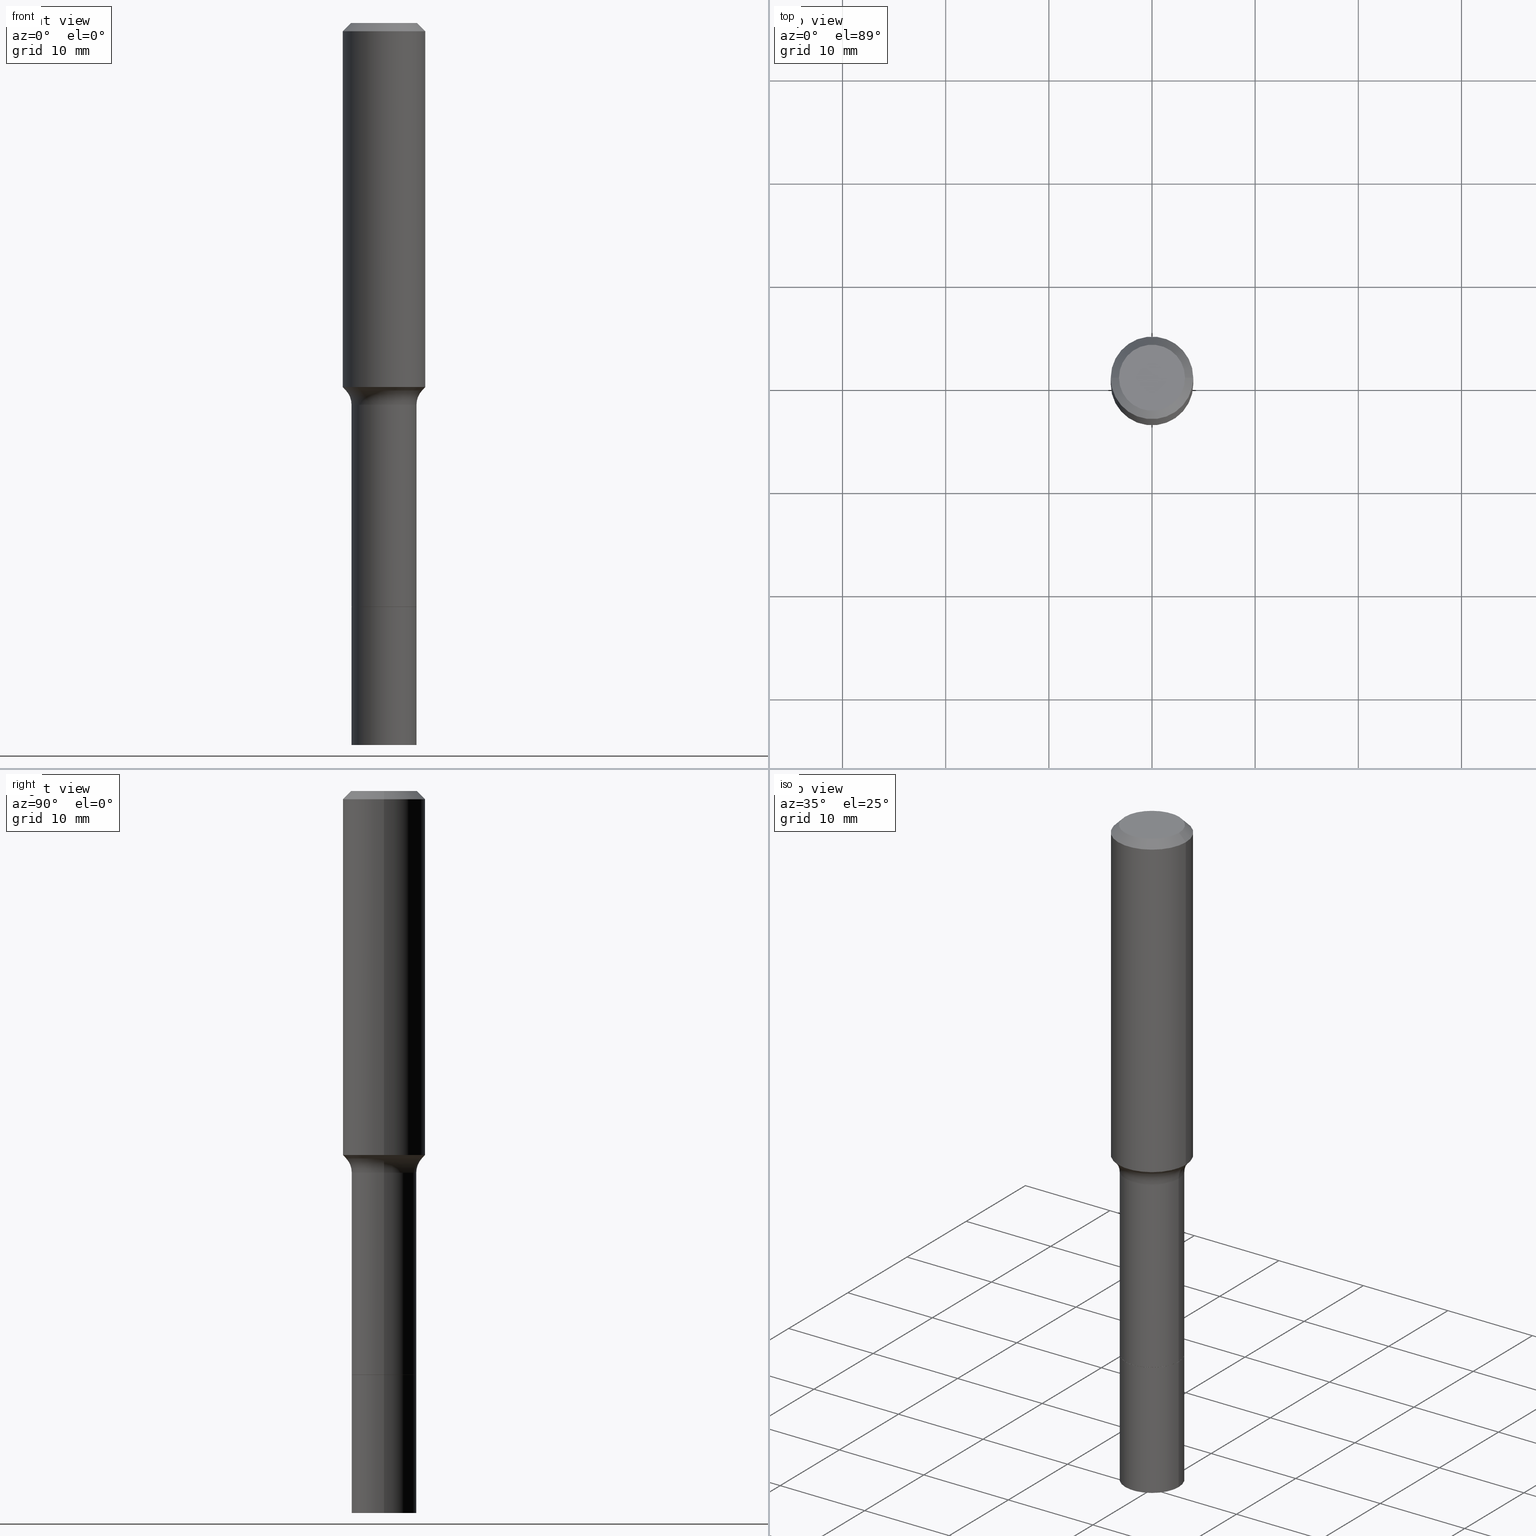
[diagram: canonical four-view strip — front | top / right | iso, engineering-drawing reading convention]
A machine part, canonical four-view strip (front | top / right | iso — engineering-drawing reading convention). The complete STEP part file that produces these views, byte-faithful:
ISO-10303-21;
HEADER;
FILE_DESCRIPTION (( 'STEP AP203' ),
    '1' );
FILE_NAME ('67109.STEP',
    '2025-04-01T15:28:21',
    ( '' ),
    ( '' ),
    'SwSTEP 2.0',
    'SolidWorks 2024',
    '' );
FILE_SCHEMA (( 'CONFIG_CONTROL_DESIGN' ));
ENDSEC;

DATA;
#1 = ORIENTED_EDGE ( 'NONE', *, *, #56, .T. ) ;
#2 = PERSON_AND_ORGANIZATION ( #256, #31 ) ;
#3 = CARTESIAN_POINT ( 'NONE',  ( -0.2039999999999999314, -3.637231981609974169E-15, -1.456899999999999862 ) ) ;
#4 = AXIS2_PLACEMENT_3D ( 'NONE', #502, #145, #459 ) ;
#5 = DATE_TIME_ROLE ( 'classification_date' ) ;
#6 = APPROVAL_PERSON_ORGANIZATION ( #479, #222, #131 ) ;
#7 = DIRECTION ( 'NONE',  ( -2.445468806185136597E-29, 3.491481338843145583E-15, 1.000000000000000000 ) ) ;
#8 = CARTESIAN_POINT ( 'NONE',  ( 5.447037218896773702E-29, -7.776925534139223332E-15, -2.227400000000000269 ) ) ;
#9 = EDGE_CURVE ( 'NONE', #458, #476, #311, .T. ) ;
#10 = PERSON_AND_ORGANIZATION ( #256, #31 ) ;
#11 = DIRECTION ( 'NONE',  ( 1.000000000000000000, -6.982962677686267499E-15, 0.000000000000000000 ) ) ;
#12 = CIRCLE ( 'NONE', #47, 0.1234999999999999987 ) ;
#13 = DIRECTION ( 'NONE',  ( -2.445468806185136597E-29, 3.491481338843145583E-15, 1.000000000000000000 ) ) ;
#14 = AXIS2_PLACEMENT_3D ( 'NONE', #35, #112, #466 ) ;
#15 = EDGE_CURVE ( 'NONE', #44, #22, #207, .T. ) ;
#16 = CARTESIAN_POINT ( 'NONE',  ( 3.397887959612791457E-29, -4.851283472707574529E-15, -1.389462810164977302 ) ) ;
#17 = EDGE_CURVE ( 'NONE', #44, #126, #516, .T. ) ;
#18 = CARTESIAN_POINT ( 'NONE',  ( 3.562803503731125923E-29, -5.086739162560578258E-15, -1.456899999999999862 ) ) ;
#19 = ORIENTED_EDGE ( 'NONE', *, *, #183, .F. ) ;
#20 = DIRECTION ( 'NONE',  ( 1.000000000000000000, -6.982962677686267499E-15, 4.883557194083113462E-29 ) ) ;
#21 = AXIS2_PLACEMENT_3D ( 'NONE', #8, #209, #408 ) ;
#22 = VERTEX_POINT ( 'NONE', #160 ) ;
#23 = DIRECTION ( 'NONE',  ( -2.445468806185136597E-29, 3.491481338843145583E-15, 1.000000000000000000 ) ) ;
#24 = ORIENTED_EDGE ( 'NONE', *, *, #134, .T. ) ;
#25 = CARTESIAN_POINT ( 'NONE',  ( 0.1234999999999999987, -8.641067165502898364E-15, -2.227899999999999991 ) ) ;
#26 = ORIENTED_EDGE ( 'NONE', *, *, #460, .T. ) ;
#27 = PLANE ( 'NONE',  #91 ) ;
#28 = ORIENTED_EDGE ( 'NONE', *, *, #462, .T. ) ;
#29 = CIRCLE ( 'NONE', #21, 0.1239999999999999991 ) ;
#30 = AXIS2_PLACEMENT_3D ( 'NONE', #181, #290, #217 ) ;
#31 = ORGANIZATION ( 'UNSPECIFIED', 'UNSPECIFIED', '' ) ;
#32 = CARTESIAN_POINT ( 'NONE',  ( 0.1454917038704660048, -5.912207536818637101E-15, -1.402340131194999895 ) ) ;
#33 = CARTESIAN_POINT ( 'NONE',  ( -0.1239999999999999436, 8.810729923425238297E-16, -6.099479511916080344E-30 ) ) ;
#34 = ORIENTED_EDGE ( 'NONE', *, *, #307, .F. ) ;
#35 = CARTESIAN_POINT ( 'NONE',  ( 0.000000000000000000, 0.000000000000000000, 0.000000000000000000 ) ) ;
#36 = ORIENTED_EDGE ( 'NONE', *, *, #161, .F. ) ;
#37 = EDGE_CURVE ( 'NONE', #146, #265, #261, .T. ) ;
#38 = VECTOR ( 'NONE', #455, 39.37007874015748143 ) ;
#39 = CC_DESIGN_DATE_AND_TIME_ASSIGNMENT ( #89, #165, ( #147 ) ) ;
#40 = VECTOR ( 'NONE', #517, 39.37007874015748143 ) ;
#41 = DIRECTION ( 'NONE',  ( 1.000000000000000000, -6.982962677686265922E-15, 0.000000000000000000 ) ) ;
#42 = DIRECTION ( 'NONE',  ( 1.000000000000000000, -6.982962677686270655E-15, 0.000000000000000000 ) ) ;
#43 = DIRECTION ( 'NONE',  ( -2.445468806185136597E-29, 3.491481338843145583E-15, 1.000000000000000000 ) ) ;
#44 = VERTEX_POINT ( 'NONE', #81 ) ;
#45 = PERSON_AND_ORGANIZATION_ROLE ( 'design_supplier' ) ;
#46 = DIRECTION ( 'NONE',  ( 1.000000000000000000, -6.982962677686267499E-15, 0.000000000000000000 ) ) ;
#47 = AXIS2_PLACEMENT_3D ( 'NONE', #451, #357, #252 ) ;
#48 = APPLICATION_PROTOCOL_DEFINITION ( 'international standard', 'config_control_design', 1994, #346 ) ;
#49 = DIRECTION ( 'NONE',  ( 1.000000000000000000, -6.982962677686265922E-15, 0.000000000000000000 ) ) ;
#50 = APPROVAL_DATE_TIME ( #203, #222 ) ;
#51 = FACE_OUTER_BOUND ( 'NONE', #180, .T. ) ;
#52 = ORIENTED_EDGE ( 'NONE', *, *, #240, .T. ) ;
#53 = PERSON_AND_ORGANIZATION_ROLE ( 'creator' ) ;
#54 = DIRECTION ( 'NONE',  ( 1.000000000000000000, -6.982962677686266711E-15, 4.876176775795935793E-29 ) ) ;
#55 = ADVANCED_FACE ( 'NONE', ( #202 ), #233, .T. ) ;
#56 = EDGE_CURVE ( 'NONE', #103, #171, #436, .T. ) ;
#57 = CIRCLE ( 'NONE', #99, 0.1239999999999999991 ) ;
#58 = CYLINDRICAL_SURFACE ( 'NONE', #409, 0.1239999999999999436 ) ;
#59 = AXIS2_PLACEMENT_3D ( 'NONE', #236, #43, #41 ) ;
#60 = CARTESIAN_POINT ( 'NONE',  ( -0.1240000000000000824, -6.897598282466119822E-15, -2.227899999999999991 ) ) ;
#61 = VERTEX_POINT ( 'NONE', #387 ) ;
#62 = DIRECTION ( 'NONE',  ( -2.445468806185136597E-29, 3.491481338843145583E-15, 1.000000000000000000 ) ) ;
#63 = ORIENTED_EDGE ( 'NONE', *, *, #499, .T. ) ;
#64 = DIRECTION ( 'NONE',  ( 1.000000000000000000, -6.982962677686267499E-15, 4.883557194083113462E-29 ) ) ;
#65 = DESIGN_CONTEXT ( 'detailed design', #346, 'design' ) ;
#66 = CIRCLE ( 'NONE', #339, 0.1575000000000001676 ) ;
#67 = EDGE_LOOP ( 'NONE', ( #109, #260, #301, #26 ) ) ;
#68 = CYLINDRICAL_SURFACE ( 'NONE', #4, 0.1575000000000000844 ) ;
#69 = ORIENTED_EDGE ( 'NONE', *, *, #231, .F. ) ;
#70 = DIRECTION ( 'NONE',  ( -1.000000000000000000, 6.982962677686265922E-15, -4.876176775795935793E-29 ) ) ;
#71 = EDGE_CURVE ( 'NONE', #372, #22, #74, .T. ) ;
#72 = ORIENTED_EDGE ( 'NONE', *, *, #477, .T. ) ;
#73 = APPLICATION_PROTOCOL_DEFINITION ( 'international standard', 'config_control_design', 1994, #329 ) ;
#74 = LINE ( 'NONE', #33, #312 ) ;
#75 = AXIS2_PLACEMENT_3D ( 'NONE', #18, #62, #225 ) ;
#76 = APPROVAL_PERSON_ORGANIZATION ( #10, #201, #450 ) ;
#77 = VECTOR ( 'NONE', #438, 39.37007874015748143 ) ;
#78 = DIRECTION ( 'NONE',  ( 2.445468806185136597E-29, -3.491481338843145583E-15, -1.000000000000000000 ) ) ;
#79 = CARTESIAN_POINT ( 'NONE',  ( 0.2039999999999999314, -6.511263548808576446E-15, -1.456899999999999862 ) ) ;
#80 =( CONVERSION_BASED_UNIT ( 'INCH', #300 ) LENGTH_UNIT ( ) NAMED_UNIT ( #185 ) );
#81 = CARTESIAN_POINT ( 'NONE',  ( -0.1454917038704661991, -3.862463665792996295E-15, -1.402340131194999895 ) ) ;
#82 = EDGE_CURVE ( 'NONE', #113, #476, #353, .T. ) ;
#83 = EDGE_LOOP ( 'NONE', ( #140, #507, #182, #86 ) ) ;
#84 = AXIS2_PLACEMENT_3D ( 'NONE', #425, #351, #42 ) ;
#85 =( NAMED_UNIT ( * ) PLANE_ANGLE_UNIT ( ) SI_UNIT ( $, .RADIAN. ) );
#86 = ORIENTED_EDGE ( 'NONE', *, *, #390, .T. ) ;
#87 = DIRECTION ( 'NONE',  ( -2.445468806185136597E-29, 3.491481338843145583E-15, 1.000000000000000000 ) ) ;
#88 = EDGE_CURVE ( 'NONE', #264, #61, #473, .T. ) ;
#89 = DATE_AND_TIME ( #486, #173 ) ;
#90 = CARTESIAN_POINT ( 'NONE',  ( 7.703226739483230474E-31, -1.099816621735598031E-16, -0.03150000000000020839 ) ) ;
#91 = AXIS2_PLACEMENT_3D ( 'NONE', #334, #187, #491 ) ;
#92 = APPROVAL_DATE_TIME ( #320, #97 ) ;
#93 = CIRCLE ( 'NONE', #239, 0.1239999999999998881 ) ;
#94 = CARTESIAN_POINT ( 'NONE',  ( 3.429379046498943910E-29, -4.896244398778190198E-15, -1.402340131194999895 ) ) ;
#95 = PERSON_AND_ORGANIZATION ( #256, #31 ) ;
#96 = FACE_OUTER_BOUND ( 'NONE', #420, .T. ) ;
#97 = APPROVAL ( #210, 'UNSPECIFIED' ) ;
#98 = DIRECTION ( 'NONE',  ( 1.000000000000000000, -6.982962677686262766E-15, 0.000000000000000000 ) ) ;
#99 = AXIS2_PLACEMENT_3D ( 'NONE', #133, #368, #98 ) ;
#100 = LINE ( 'NONE', #299, #291 ) ;
#101 = AXIS2_PLACEMENT_3D ( 'NONE', #428, #471, #151 ) ;
#102 = CARTESIAN_POINT ( 'NONE',  ( 3.562803503731125923E-29, -5.086739162560578258E-15, -1.456899999999999862 ) ) ;
#103 = VERTEX_POINT ( 'NONE', #434 ) ;
#104 = DIRECTION ( 'NONE',  ( -2.445468806185136597E-29, 3.491481338843145583E-15, 1.000000000000000000 ) ) ;
#105 = LINE ( 'NONE', #25, #38 ) ;
#106 = AXIS2_PLACEMENT_3D ( 'NONE', #285, #317, #326 ) ;
#107 = ORIENTED_EDGE ( 'NONE', *, *, #296, .T. ) ;
#108 = CARTESIAN_POINT ( 'NONE',  ( 6.739467482965618232E-29, -9.622173421717824390E-15, -2.755900000000000016 ) ) ;
#109 = ORIENTED_EDGE ( 'NONE', *, *, #82, .F. ) ;
#110 = CARTESIAN_POINT ( 'NONE',  ( -0.1575000000000000844, 1.119104808822158392E-15, -7.747322767151481189E-30 ) ) ;
#111 = EDGE_LOOP ( 'NONE', ( #404, #164, #461, #221 ) ) ;
#112 = DIRECTION ( 'NONE',  ( -2.445468806185136597E-29, 3.491481338843145583E-15, 1.000000000000000000 ) ) ;
#113 = VERTEX_POINT ( 'NONE', #216 ) ;
#114 = CIRCLE ( 'NONE', #350, 0.1575000000000000011 ) ;
#115 = APPROVAL_PERSON_ORGANIZATION ( #2, #97, #286 ) ;
#116 = DIRECTION ( 'NONE',  ( -2.445468806185136597E-29, 3.491481338843145583E-15, 1.000000000000000000 ) ) ;
#117 = CYLINDRICAL_SURFACE ( 'NONE', #454, 0.1575000000000000844 ) ;
#118 = CARTESIAN_POINT ( 'NONE',  ( -0.1575000000000000011, 9.898349595620272334E-16, -0.03150000000000020839 ) ) ;
#119 = LINE ( 'NONE', #110, #505 ) ;
#120 = DIRECTION ( 'NONE',  ( -2.445468806185136877E-29, 3.491481338843145188E-15, 1.000000000000000000 ) ) ;
#121 = VECTOR ( 'NONE', #246, 39.37007874015748143 ) ;
#122 = AXIS2_PLACEMENT_3D ( 'NONE', #457, #104, #259 ) ;
#123 = SHAPE_DEFINITION_REPRESENTATION ( #309, #416 ) ;
#124 = CARTESIAN_POINT ( 'NONE',  ( -0.1260000000000000009, 9.348441284752484904E-16, 3.860086710906110326E-18 ) ) ;
#125 = CARTESIAN_POINT ( 'NONE',  ( -9.439721640706193907E-47, 1.347742071746725396E-32, 3.860086710912455880E-18 ) ) ;
#126 = VERTEX_POINT ( 'NONE', #440 ) ;
#127 = COORDINATED_UNIVERSAL_TIME_OFFSET ( 5, 0, .BEHIND. ) ;
#128 = CARTESIAN_POINT ( 'NONE',  ( 0.1240000000000000824, -8.644558646841741371E-15, -2.227899999999999991 ) ) ;
#129 = ORIENTED_EDGE ( 'NONE', *, *, #379, .F. ) ;
#130 = CIRCLE ( 'NONE', #75, 0.1239999999999998881 ) ;
#131 = APPROVAL_ROLE ( '' ) ;
#132 = PRODUCT_RELATED_PRODUCT_CATEGORY ( 'detail', '', ( #474 ) ) ;
#133 = CARTESIAN_POINT ( 'NONE',  ( 5.447037218896773702E-29, -7.776925534139223332E-15, -2.227400000000000269 ) ) ;
#134 = EDGE_CURVE ( 'NONE', #458, #126, #366, .T. ) ;
#135 = ORIENTED_EDGE ( 'NONE', *, *, #37, .F. ) ;
#136 = CARTESIAN_POINT ( 'NONE',  ( 6.739467482965618232E-29, -9.622173421717824390E-15, -2.755900000000000016 ) ) ;
#137 = DIRECTION ( 'NONE',  ( -2.445468806185136597E-29, 3.491481338843145583E-15, 1.000000000000000000 ) ) ;
#138 = VECTOR ( 'NONE', #281, 39.37007874015748143 ) ;
#139 = FACE_OUTER_BOUND ( 'NONE', #465, .T. ) ;
#140 = ORIENTED_EDGE ( 'NONE', *, *, #15, .F. ) ;
#141 = CARTESIAN_POINT ( 'NONE',  ( 3.429379046498943910E-29, -4.896244398778190198E-15, -1.402340131194999895 ) ) ;
#142 = EDGE_LOOP ( 'NONE', ( #19, #224 ) ) ;
#143 = DIRECTION ( 'NONE',  ( -2.445468806185136597E-29, 3.491481338843145583E-15, 1.000000000000000000 ) ) ;
#144 = ORIENTED_EDGE ( 'NONE', *, *, #88, .F. ) ;
#145 = DIRECTION ( 'NONE',  ( -2.445468806185136597E-29, 3.491481338843145583E-15, 1.000000000000000000 ) ) ;
#146 = VERTEX_POINT ( 'NONE', #448 ) ;
#147 = PRODUCT_DEFINITION ( 'UNKNOWN', '', #228, #65 ) ;
#148 = CIRCLE ( 'NONE', #122, 0.1575000000000000011 ) ;
#149 = VERTEX_POINT ( 'NONE', #400 ) ;
#150 = ORIENTED_EDGE ( 'NONE', *, *, #71, .F. ) ;
#151 = DIRECTION ( 'NONE',  ( 1.000000000000000000, -6.982962677686265922E-15, 0.000000000000000000 ) ) ;
#152 = ORIENTED_EDGE ( 'NONE', *, *, #161, .T. ) ;
#153 = VECTOR ( 'NONE', #369, 39.37007874015748143 ) ;
#154 = LOCAL_TIME ( 11, 28, 21.00000000000000000, #169 ) ;
#155 = MECHANICAL_CONTEXT ( 'NONE', #329, 'mechanical' ) ;
#156 = DIRECTION ( 'NONE',  ( -1.000000000000000000, 7.105427357601001859E-15, 0.000000000000000000 ) ) ;
#157 = CARTESIAN_POINT ( 'NONE',  ( 0.1575000000000000011, -1.209798283909146741E-15, -0.03150000000000020839 ) ) ;
#158 = VERTEX_POINT ( 'NONE', #359 ) ;
#159 = APPROVAL_DATE_TIME ( #324, #201 ) ;
#160 = CARTESIAN_POINT ( 'NONE',  ( -0.1239999999999998881, -5.550759356007377360E-15, -1.456899999999999862 ) ) ;
#161 = EDGE_CURVE ( 'NONE', #44, #146, #238, .T. ) ;
#162 = AXIS2_PLACEMENT_3D ( 'NONE', #136, #13, #328 ) ;
#163 = CARTESIAN_POINT ( 'NONE',  ( 0.1239999999999999436, -8.658873720330966343E-16, 6.046459201986957833E-30 ) ) ;
#164 = ORIENTED_EDGE ( 'NONE', *, *, #492, .T. ) ;
#165 = DATE_TIME_ROLE ( 'creation_date' ) ;
#166 = CYLINDRICAL_SURFACE ( 'NONE', #205, 0.1240000000000000824 ) ;
#167 = ORIENTED_EDGE ( 'NONE', *, *, #390, .F. ) ;
#168 = ADVANCED_FACE ( 'NONE', ( #96 ), #445, .T. ) ;
#169 = COORDINATED_UNIVERSAL_TIME_OFFSET ( 5, 0, .BEHIND. ) ;
#170 = CARTESIAN_POINT ( 'NONE',  ( 5.448259953299865383E-29, -7.778671274808644046E-15, -2.227899999999999991 ) ) ;
#171 = VERTEX_POINT ( 'NONE', #490 ) ;
#172 = CIRCLE ( 'NONE', #463, 0.1239999999999999991 ) ;
#173 = LOCAL_TIME ( 11, 28, 21.00000000000000000, #441 ) ;
#174 = CARTESIAN_POINT ( 'NONE',  ( 0.000000000000000000, 0.000000000000000000, 0.000000000000000000 ) ) ;
#175 = DIRECTION ( 'NONE',  ( -2.445468806185136597E-29, 3.491481338843145583E-15, 1.000000000000000000 ) ) ;
#176 = DIRECTION ( 'NONE',  ( 2.438088387897960049E-29, -3.491481338843145188E-15, -1.000000000000000000 ) ) ;
#177 = EDGE_LOOP ( 'NONE', ( #129, #72, #456, #483 ) ) ;
#178 = CONICAL_SURFACE ( 'NONE', #480, 0.1234999999999999987, 0.7853981633975507526 ) ;
#179 = FACE_OUTER_BOUND ( 'NONE', #414, .T. ) ;
#180 = EDGE_LOOP ( 'NONE', ( #338, #1 ) ) ;
#181 = CARTESIAN_POINT ( 'NONE',  ( 7.703226739483230474E-31, -1.099816621735598031E-16, -0.03150000000000020839 ) ) ;
#182 = ORIENTED_EDGE ( 'NONE', *, *, #37, .T. ) ;
#183 = EDGE_CURVE ( 'NONE', #218, #237, #227, .T. ) ;
#184 = FACE_OUTER_BOUND ( 'NONE', #142, .T. ) ;
#185 = DIMENSIONAL_EXPONENTS ( 1.000000000000000000, 0.000000000000000000, 0.000000000000000000, 0.000000000000000000, 0.000000000000000000, 0.000000000000000000, 0.000000000000000000 ) ;
#186 = ORIENTED_EDGE ( 'NONE', *, *, #433, .T. ) ;
#187 = DIRECTION ( 'NONE',  ( -2.438088387897960049E-29, 3.491481338843145188E-15, 1.000000000000000000 ) ) ;
#188 = AXIS2_PLACEMENT_3D ( 'NONE', #108, #176, #70 ) ;
#189 = EDGE_LOOP ( 'NONE', ( #52, #503, #472, #235 ) ) ;
#190 = CARTESIAN_POINT ( 'NONE',  ( 7.703226739483230474E-31, -1.099816621735598031E-16, -0.03150000000000020839 ) ) ;
#191 = DIRECTION ( 'NONE',  ( 1.000000000000000000, -6.982962677686265922E-15, 0.000000000000000000 ) ) ;
#192 = ADVANCED_FACE ( 'NONE', ( #287 ), #166, .T. ) ;
#193 = CARTESIAN_POINT ( 'NONE',  ( 0.1575000000000000844, -1.099816621735587677E-15, 7.679978421878603638E-30 ) ) ;
#194 = DIRECTION ( 'NONE',  ( 1.000000000000000000, -6.982962677686267499E-15, 4.876176775795936353E-29 ) ) ;
#195 = DIRECTION ( 'NONE',  ( 1.000000000000000000, -6.982962677686263555E-15, 0.000000000000000000 ) ) ;
#196 = VECTOR ( 'NONE', #273, 39.37007874015748143 ) ;
#197 = CARTESIAN_POINT ( 'NONE',  ( 6.739467482965618232E-29, -9.622173421717824390E-15, -2.755900000000000016 ) ) ;
#198 = ORIENTED_EDGE ( 'NONE', *, *, #9, .T. ) ;
#199 = CC_DESIGN_PERSON_AND_ORGANIZATION_ASSIGNMENT ( #356, #45, ( #228 ) ) ;
#200 = APPROVAL_STATUS ( 'not_yet_approved' ) ;
#201 = APPROVAL ( #279, 'UNSPECIFIED' ) ;
#202 = FACE_OUTER_BOUND ( 'NONE', #468, .T. ) ;
#203 = DATE_AND_TIME ( #284, #358 ) ;
#204 = DIRECTION ( 'NONE',  ( 1.000000000000000000, -6.982962677686265922E-15, 4.876281427513067258E-29 ) ) ;
#205 = AXIS2_PLACEMENT_3D ( 'NONE', #482, #321, #360 ) ;
#206 =( GEOMETRIC_REPRESENTATION_CONTEXT ( 3 ) GLOBAL_UNCERTAINTY_ASSIGNED_CONTEXT ( ( #365 ) ) GLOBAL_UNIT_ASSIGNED_CONTEXT ( ( #80, #85, #506 ) ) REPRESENTATION_CONTEXT ( 'NONE', 'WORKASPACE' ) );
#207 = CIRCLE ( 'NONE', #292, 0.08000000000000009881 ) ;
#208 = CALENDAR_DATE ( 2025, 1, 4 ) ;
#209 = DIRECTION ( 'NONE',  ( -2.445468806185136597E-29, 3.491481338843145583E-15, 1.000000000000000000 ) ) ;
#210 = APPROVAL_STATUS ( 'not_yet_approved' ) ;
#211 = PLANE ( 'NONE',  #494 ) ;
#212 = EDGE_CURVE ( 'NONE', #264, #113, #278, .T. ) ;
#213 = ORIENTED_EDGE ( 'NONE', *, *, #71, .T. ) ;
#214 = DIRECTION ( 'NONE',  ( 1.000000000000000000, -6.982962677686265922E-15, 0.000000000000000000 ) ) ;
#215 = AXIS2_PLACEMENT_3D ( 'NONE', #16, #87, #46 ) ;
#216 = CARTESIAN_POINT ( 'NONE',  ( 0.1260000000000000009, -1.027466422270894443E-15, 3.860086710919124220E-18 ) ) ;
#217 = DIRECTION ( 'NONE',  ( -1.000000000000000000, 6.982962677686265922E-15, 0.000000000000000000 ) ) ;
#218 = VERTEX_POINT ( 'NONE', #250 ) ;
#219 = DIRECTION ( 'NONE',  ( 1.000000000000000000, -6.982962677686265922E-15, 0.000000000000000000 ) ) ;
#220 = DIRECTION ( 'NONE',  ( 1.000000000000000000, -6.982962677686265922E-15, 4.876281427513067258E-29 ) ) ;
#221 = ORIENTED_EDGE ( 'NONE', *, *, #56, .F. ) ;
#222 = APPROVAL ( #200, 'UNSPECIFIED' ) ;
#223 = DIRECTION ( 'NONE',  ( -2.445468806185136597E-29, 3.491481338843145583E-15, 1.000000000000000000 ) ) ;
#224 = ORIENTED_EDGE ( 'NONE', *, *, #492, .F. ) ;
#225 = DIRECTION ( 'NONE',  ( 1.000000000000000000, -6.982962677686269077E-15, 0.000000000000000000 ) ) ;
#226 = ORIENTED_EDGE ( 'NONE', *, *, #240, .F. ) ;
#227 = CIRCLE ( 'NONE', #162, 0.1240000000000001656 ) ;
#228 = PRODUCT_DEFINITION_FORMATION_WITH_SPECIFIED_SOURCE ( 'ANY', '', #474, .NOT_KNOWN. ) ;
#229 = ORIENTED_EDGE ( 'NONE', *, *, #363, .F. ) ;
#230 = VECTOR ( 'NONE', #120, 39.37007874015748143 ) ;
#231 = EDGE_CURVE ( 'NONE', #218, #171, #406, .T. ) ;
#232 = PLANE ( 'NONE',  #427 ) ;
#233 = CYLINDRICAL_SURFACE ( 'NONE', #504, 0.1240000000000000824 ) ;
#234 = DIRECTION ( 'NONE',  ( 1.000000000000000000, -6.982962677686269077E-15, 0.000000000000000000 ) ) ;
#235 = ORIENTED_EDGE ( 'NONE', *, *, #343, .F. ) ;
#236 = CARTESIAN_POINT ( 'NONE',  ( 5.448259953299865383E-29, -7.778671274808644046E-15, -2.227899999999999991 ) ) ;
#237 = VERTEX_POINT ( 'NONE', #442 ) ;
#238 = CIRCLE ( 'NONE', #247, 0.1454917038704660048 ) ;
#239 = AXIS2_PLACEMENT_3D ( 'NONE', #415, #23, #234 ) ;
#240 = EDGE_CURVE ( 'NONE', #158, #432, #12, .T. ) ;
#241 = FACE_OUTER_BOUND ( 'NONE', #313, .T. ) ;
#242 = ORIENTED_EDGE ( 'NONE', *, *, #17, .T. ) ;
#243 = CALENDAR_DATE ( 2025, 1, 4 ) ;
#244 = CARTESIAN_POINT ( 'NONE',  ( 3.397887959612791457E-29, -4.851283472707574529E-15, -1.389462810164977302 ) ) ;
#245 = PERSON_AND_ORGANIZATION ( #256, #31 ) ;
#246 = DIRECTION ( 'NONE',  ( -2.445468806185136877E-29, 3.491481338843145188E-15, 1.000000000000000000 ) ) ;
#247 = AXIS2_PLACEMENT_3D ( 'NONE', #319, #175, #49 ) ;
#248 = CC_DESIGN_APPROVAL ( #201, ( #323 ) ) ;
#249 = DIRECTION ( 'NONE',  ( 1.000000000000000000, -6.982962677686265922E-15, 0.000000000000000000 ) ) ;
#250 = CARTESIAN_POINT ( 'NONE',  ( 0.1240000000000001656, -1.048806079375092171E-14, -2.755900000000000016 ) ) ;
#251 = PERSON_AND_ORGANIZATION_ROLE ( 'design_owner' ) ;
#252 = DIRECTION ( 'NONE',  ( 1.000000000000000000, -6.982962677686265922E-15, 0.000000000000000000 ) ) ;
#253 = AXIS2_PLACEMENT_3D ( 'NONE', #337, #137, #220 ) ;
#254 = EDGE_CURVE ( 'NONE', #372, #149, #57, .T. ) ;
#255 = LINE ( 'NONE', #60, #153 ) ;
#256 = PERSON ( 'UNSPECIFIED', 'UNSPECIFIED', 'UNSPECIFIED', ('UNSPECIFIED'), ('UNSPECIFIED'), ('UNSPECIFIED') ) ;
#257 = DIRECTION ( 'NONE',  ( -1.000000000000000000, 6.982962677686265922E-15, -4.876176775795935793E-29 ) ) ;
#258 = EDGE_LOOP ( 'NONE', ( #467, #378 ) ) ;
#259 = DIRECTION ( 'NONE',  ( 1.000000000000000000, -6.982962677686265922E-15, 0.000000000000000000 ) ) ;
#260 = ORIENTED_EDGE ( 'NONE', *, *, #212, .F. ) ;
#261 = CIRCLE ( 'NONE', #314, 0.08000000000000009881 ) ;
#262 = ORIENTED_EDGE ( 'NONE', *, *, #307, .T. ) ;
#263 = PLANE ( 'NONE',  #188 ) ;
#264 = VERTEX_POINT ( 'NONE', #124 ) ;
#265 = VERTEX_POINT ( 'NONE', #283 ) ;
#266 = FACE_OUTER_BOUND ( 'NONE', #177, .T. ) ;
#267 = TOROIDAL_SURFACE ( 'NONE', #298, 0.2039999999999999314, 0.08000000000000009881 ) ;
#268 = CONICAL_SURFACE ( 'NONE', #470, 0.1575000000000000011, 0.7853981633974447263 ) ;
#269 = ORIENTED_EDGE ( 'NONE', *, *, #282, .T. ) ;
#270 = CARTESIAN_POINT ( 'NONE',  ( 0.000000000000000000, 0.000000000000000000, 0.000000000000000000 ) ) ;
#271 = EDGE_LOOP ( 'NONE', ( #36, #294, #28, #135 ) ) ;
#272 = DIRECTION ( 'NONE',  ( -2.445468806185136597E-29, 3.491481338843145583E-15, 1.000000000000000000 ) ) ;
#273 = DIRECTION ( 'NONE',  ( -0.7071067811865450192, 2.468850131082230634E-15, -0.7071067811865500152 ) ) ;
#274 = EDGE_CURVE ( 'NONE', #149, #372, #29, .T. ) ;
#275 = CC_DESIGN_DATE_AND_TIME_ASSIGNMENT ( #395, #5, ( #323 ) ) ;
#276 = MANIFOLD_SOLID_BREP ( 'Body-Move/Copy2[2]', #333 ) ;
#277 = DIRECTION ( 'NONE',  ( 7.105427357601001859E-15, 1.000000000000000000, -3.491481338843145583E-15 ) ) ;
#278 = CIRCLE ( 'NONE', #487, 0.1260000000000000009 ) ;
#279 = APPROVAL_STATUS ( 'not_yet_approved' ) ;
#280 = FACE_OUTER_BOUND ( 'NONE', #385, .T. ) ;
#281 = DIRECTION ( 'NONE',  ( -2.445468806185136877E-29, 3.491481338843145188E-15, 1.000000000000000000 ) ) ;
#282 = EDGE_CURVE ( 'NONE', #126, #458, #66, .T. ) ;
#283 = CARTESIAN_POINT ( 'NONE',  ( 0.1239999999999998881, -5.952626534593674794E-15, -1.456899999999999862 ) ) ;
#284 = CALENDAR_DATE ( 2025, 1, 4 ) ;
#285 = CARTESIAN_POINT ( 'NONE',  ( 3.429379046498943910E-29, -4.896244398778190198E-15, -1.402340131194999895 ) ) ;
#286 = APPROVAL_ROLE ( '' ) ;
#287 = FACE_OUTER_BOUND ( 'NONE', #111, .T. ) ;
#288 = ADVANCED_FACE ( 'NONE', ( #280 ), #58, .T. ) ;
#289 = CC_DESIGN_PERSON_AND_ORGANIZATION_ASSIGNMENT ( #405, #53, ( #147 ) ) ;
#290 = DIRECTION ( 'NONE',  ( 2.445468806185136597E-29, -3.491481338843145583E-15, -1.000000000000000000 ) ) ;
#291 = VECTOR ( 'NONE', #464, 39.37007874015748143 ) ;
#292 = AXIS2_PLACEMENT_3D ( 'NONE', #3, #277, #156 ) ;
#293 = DIRECTION ( 'NONE',  ( -2.445468806185136597E-29, 3.491481338843145583E-15, 1.000000000000000000 ) ) ;
#294 = ORIENTED_EDGE ( 'NONE', *, *, #15, .T. ) ;
#295 = CARTESIAN_POINT ( 'NONE',  ( 3.562803503731125923E-29, -5.086739162560578258E-15, -1.456899999999999862 ) ) ;
#296 = EDGE_CURVE ( 'NONE', #146, #44, #426, .T. ) ;
#297 = DIRECTION ( 'NONE',  ( 1.000000000000000000, -6.982962677686265922E-15, 0.000000000000000000 ) ) ;
#298 = AXIS2_PLACEMENT_3D ( 'NONE', #102, #293, #20 ) ;
#299 = CARTESIAN_POINT ( 'NONE',  ( -0.1234999999999999987, -6.901150996144921510E-15, -2.227899999999999991 ) ) ;
#300 = LENGTH_MEASURE_WITH_UNIT ( LENGTH_MEASURE( 0.02539999999999999897 ), #435 );
#301 = ORIENTED_EDGE ( 'NONE', *, *, #88, .T. ) ;
#302 = EDGE_LOOP ( 'NONE', ( #150, #342, #481, #331 ) ) ;
#303 = CARTESIAN_POINT ( 'NONE',  ( -4.719860820353096954E-47, 6.738710358733626979E-33, 1.930043355456227940E-18 ) ) ;
#304 = CIRCLE ( 'NONE', #253, 0.1260000000000000009 ) ;
#305 = AXIS2_PLACEMENT_3D ( 'NONE', #295, #143, #64 ) ;
#306 = DIRECTION ( 'NONE',  ( -6.982962677686266711E-15, -1.000000000000000000, 3.491481338843145583E-15 ) ) ;
#307 = EDGE_CURVE ( 'NONE', #476, #61, #114, .T. ) ;
#308 = DIRECTION ( 'NONE',  ( 0.7071067811865450192, -7.319954787623246579E-15, -0.7071067811865500152 ) ) ;
#309 = PRODUCT_DEFINITION_SHAPE ( 'NONE', 'NONE',  #147 ) ;
#310 = DIRECTION ( 'NONE',  ( -2.445468806185136877E-29, 3.491481338843145188E-15, 1.000000000000000000 ) ) ;
#311 = LINE ( 'NONE', #193, #230 ) ;
#312 = VECTOR ( 'NONE', #347, 39.37007874015748143 ) ;
#313 = EDGE_LOOP ( 'NONE', ( #229, #417, #262, #144 ) ) ;
#314 = AXIS2_PLACEMENT_3D ( 'NONE', #79, #306, #195 ) ;
#315 = CC_DESIGN_APPROVAL ( #97, ( #147 ) ) ;
#316 = EDGE_CURVE ( 'NONE', #149, #265, #364, .T. ) ;
#317 = DIRECTION ( 'NONE',  ( -2.445468806185136597E-29, 3.491481338843145583E-15, 1.000000000000000000 ) ) ;
#318 = PERSON_AND_ORGANIZATION_ROLE ( 'creator' ) ;
#319 = CARTESIAN_POINT ( 'NONE',  ( 3.429379046498943910E-29, -4.896244398778190198E-15, -1.402340131194999895 ) ) ;
#320 = DATE_AND_TIME ( #243, #401 ) ;
#321 = DIRECTION ( 'NONE',  ( -2.445468806185136597E-29, 3.491481338843145583E-15, 1.000000000000000000 ) ) ;
#322 = ORIENTED_EDGE ( 'NONE', *, *, #183, .T. ) ;
#323 = SECURITY_CLASSIFICATION ( '', '', #354 ) ;
#324 = DATE_AND_TIME ( #208, #374 ) ;
#325 = ADVANCED_FACE ( 'NONE', ( #51 ), #211, .F. ) ;
#326 = DIRECTION ( 'NONE',  ( 1.000000000000000000, -6.982962677686265922E-15, 0.000000000000000000 ) ) ;
#327 = ADVANCED_FACE ( 'NONE', ( #413 ), #178, .T. ) ;
#328 = DIRECTION ( 'NONE',  ( 1.000000000000000000, -6.982962677686261189E-15, 0.000000000000000000 ) ) ;
#329 = APPLICATION_CONTEXT ( 'configuration controlled 3d designs of mechanical parts and assemblies' ) ;
#330 = DIRECTION ( 'NONE',  ( -2.445468806185136597E-29, 3.491481338843145583E-15, 1.000000000000000000 ) ) ;
#331 = ORIENTED_EDGE ( 'NONE', *, *, #462, .F. ) ;
#332 = AXIS2_PLACEMENT_3D ( 'NONE', #431, #349, #515 ) ;
#333 = CLOSED_SHELL ( 'NONE', ( #327, #485, #370, #168, #396, #288, #518, #444, #403, #500, #348, #497, #422, #478 ) ) ;
#334 = CARTESIAN_POINT ( 'NONE',  ( 5.448259953299865383E-29, -7.778671274808644046E-15, -2.227899999999999991 ) ) ;
#335 = ORIENTED_EDGE ( 'NONE', *, *, #134, .F. ) ;
#336 = DIRECTION ( 'NONE',  ( -2.445468806185136597E-29, 3.491481338843145583E-15, 1.000000000000000000 ) ) ;
#337 = CARTESIAN_POINT ( 'NONE',  ( -9.439721640706193907E-47, 1.347742071746725396E-32, 3.860086710912455880E-18 ) ) ;
#338 = ORIENTED_EDGE ( 'NONE', *, *, #388, .T. ) ;
#339 = AXIS2_PLACEMENT_3D ( 'NONE', #244, #446, #11 ) ;
#340 = AXIS2_PLACEMENT_3D ( 'NONE', #197, #341, #352 ) ;
#341 = DIRECTION ( 'NONE',  ( -2.445468806185136597E-29, 3.491481338843145583E-15, 1.000000000000000000 ) ) ;
#342 = ORIENTED_EDGE ( 'NONE', *, *, #254, .T. ) ;
#343 = EDGE_CURVE ( 'NONE', #158, #149, #105, .T. ) ;
#344 = FACE_OUTER_BOUND ( 'NONE', #258, .T. ) ;
#345 = CARTESIAN_POINT ( 'NONE',  ( 0.1575000000000000011, -1.190510096822576026E-15, -0.03150000000000020839 ) ) ;
#346 = APPLICATION_CONTEXT ( 'configuration controlled 3d designs of mechanical parts and assemblies' ) ;
#347 = DIRECTION ( 'NONE',  ( -2.445468806185136877E-29, 3.491481338843145188E-15, 1.000000000000000000 ) ) ;
#348 = ADVANCED_FACE ( 'NONE', ( #419 ), #453, .T. ) ;
#349 = DIRECTION ( 'NONE',  ( 0.000000000000000000, 0.000000000000000000, 1.000000000000000000 ) ) ;
#350 = AXIS2_PLACEMENT_3D ( 'NONE', #90, #397, #249 ) ;
#351 = DIRECTION ( 'NONE',  ( -2.445468806185136597E-29, 3.491481338843145583E-15, 1.000000000000000000 ) ) ;
#352 = DIRECTION ( 'NONE',  ( 1.000000000000000000, -6.982962677686261189E-15, 0.000000000000000000 ) ) ;
#353 = LINE ( 'NONE', #345, #399 ) ;
#354 = SECURITY_CLASSIFICATION_LEVEL ( 'unclassified' ) ;
#355 = ORIENTED_EDGE ( 'NONE', *, *, #499, .F. ) ;
#356 = PERSON_AND_ORGANIZATION ( #256, #31 ) ;
#357 = DIRECTION ( 'NONE',  ( -2.445468806185136597E-29, 3.491481338843145583E-15, 1.000000000000000000 ) ) ;
#358 = LOCAL_TIME ( 11, 28, 21.00000000000000000, #127 ) ;
#359 = CARTESIAN_POINT ( 'NONE',  ( 0.1234999999999999987, -8.641067165502898364E-15, -2.227899999999999991 ) ) ;
#360 = DIRECTION ( 'NONE',  ( 1.000000000000000000, -6.982962677686265922E-15, 0.000000000000000000 ) ) ;
#361 = ADVANCED_FACE ( 'NONE', ( #184 ), #263, .T. ) ;
#362 = COORDINATED_UNIVERSAL_TIME_OFFSET ( 5, 0, .BEHIND. ) ;
#363 = EDGE_CURVE ( 'NONE', #113, #264, #304, .T. ) ;
#364 = LINE ( 'NONE', #163, #121 ) ;
#365 = UNCERTAINTY_MEASURE_WITH_UNIT (LENGTH_MEASURE( 1.000000000000000082E-05 ), #80, 'distance_accuracy_value', 'NONE');
#366 = CIRCLE ( 'NONE', #215, 0.1575000000000001676 ) ;
#367 = CONICAL_SURFACE ( 'NONE', #59, 0.1234999999999999987, 0.7853981633975507526 ) ;
#368 = DIRECTION ( 'NONE',  ( -2.445468806185136597E-29, 3.491481338843145583E-15, 1.000000000000000000 ) ) ;
#369 = DIRECTION ( 'NONE',  ( -2.445468806185136877E-29, 3.491481338843145188E-15, 1.000000000000000000 ) ) ;
#370 = ADVANCED_FACE ( 'NONE', ( #139 ), #68, .T. ) ;
#371 = CARTESIAN_POINT ( 'NONE',  ( 5.448259953299865383E-29, -7.778671274808644046E-15, -2.227899999999999991 ) ) ;
#372 = VERTEX_POINT ( 'NONE', #452 ) ;
#373 = AXIS2_PLACEMENT_3D ( 'NONE', #141, #223, #297 ) ;
#374 = LOCAL_TIME ( 11, 28, 21.00000000000000000, #447 ) ;
#375 = CARTESIAN_POINT ( 'NONE',  ( -0.1234999999999999987, -6.898501768970810308E-15, -2.227899999999999991 ) ) ;
#376 = ORIENTED_EDGE ( 'NONE', *, *, #460, .F. ) ;
#377 = CARTESIAN_POINT ( 'NONE',  ( 5.448259953299865383E-29, -7.778671274808644046E-15, -2.227899999999999991 ) ) ;
#378 = ORIENTED_EDGE ( 'NONE', *, *, #363, .T. ) ;
#379 = EDGE_CURVE ( 'NONE', #432, #372, #100, .T. ) ;
#380 = CC_DESIGN_PERSON_AND_ORGANIZATION_ASSIGNMENT ( #407, #251, ( #474 ) ) ;
#381 = FACE_OUTER_BOUND ( 'NONE', #271, .T. ) ;
#382 = ORIENTED_EDGE ( 'NONE', *, *, #477, .F. ) ;
#383 = CC_DESIGN_APPROVAL ( #222, ( #228 ) ) ;
#384 = CYLINDRICAL_SURFACE ( 'NONE', #14, 0.1239999999999999436 ) ;
#385 = EDGE_LOOP ( 'NONE', ( #512, #213, #167, #495 ) ) ;
#386 = FACE_OUTER_BOUND ( 'NONE', #498, .T. ) ;
#387 = CARTESIAN_POINT ( 'NONE',  ( -0.1575000000000000011, -1.361527758618408404E-15, -0.03150000000000020839 ) ) ;
#388 = EDGE_CURVE ( 'NONE', #171, #103, #172, .T. ) ;
#389 = DIRECTION ( 'NONE',  ( 2.438088387897960049E-29, -3.491481338843145188E-15, -1.000000000000000000 ) ) ;
#390 = EDGE_CURVE ( 'NONE', #265, #22, #130, .T. ) ;
#391 = CARTESIAN_POINT ( 'NONE',  ( -0.1454917038704660048, -3.862463665792997873E-15, -1.402340131194999895 ) ) ;
#392 = DIRECTION ( 'NONE',  ( -1.000000000000000000, 6.982962677686265922E-15, 0.000000000000000000 ) ) ;
#393 = CARTESIAN_POINT ( 'NONE',  ( 5.448259953299865383E-29, -7.778671274808644046E-15, -2.227899999999999991 ) ) ;
#394 = ORIENTED_EDGE ( 'NONE', *, *, #508, .T. ) ;
#395 = DATE_AND_TIME ( #398, #154 ) ;
#396 = ADVANCED_FACE ( 'NONE', ( #381 ), #267, .F. ) ;
#397 = DIRECTION ( 'NONE',  ( -2.445468806185136597E-29, 3.491481338843145583E-15, 1.000000000000000000 ) ) ;
#398 = CALENDAR_DATE ( 2025, 1, 4 ) ;
#399 = VECTOR ( 'NONE', #308, 39.37007874015748143 ) ;
#400 = CARTESIAN_POINT ( 'NONE',  ( 0.1239999999999999991, -8.642812906172319078E-15, -2.227400000000000269 ) ) ;
#401 = LOCAL_TIME ( 11, 28, 21.00000000000000000, #362 ) ;
#402 = DIRECTION ( 'NONE',  ( -2.445468806185136597E-29, 3.491481338843145583E-15, 1.000000000000000000 ) ) ;
#403 = ADVANCED_FACE ( 'NONE', ( #411 ), #469, .T. ) ;
#404 = ORIENTED_EDGE ( 'NONE', *, *, #433, .F. ) ;
#405 = PERSON_AND_ORGANIZATION ( #256, #31 ) ;
#406 = LINE ( 'NONE', #128, #138 ) ;
#407 = PERSON_AND_ORGANIZATION ( #256, #31 ) ;
#408 = DIRECTION ( 'NONE',  ( 1.000000000000000000, -6.982962677686262766E-15, 0.000000000000000000 ) ) ;
#409 = AXIS2_PLACEMENT_3D ( 'NONE', #174, #402, #54 ) ;
#410 = CIRCLE ( 'NONE', #101, 0.1234999999999999987 ) ;
#411 = FACE_OUTER_BOUND ( 'NONE', #424, .T. ) ;
#412 = ORIENTED_EDGE ( 'NONE', *, *, #9, .F. ) ;
#413 = FACE_OUTER_BOUND ( 'NONE', #189, .T. ) ;
#414 = EDGE_LOOP ( 'NONE', ( #226, #382 ) ) ;
#415 = CARTESIAN_POINT ( 'NONE',  ( 3.562803503731125923E-29, -5.086739162560578258E-15, -1.456899999999999862 ) ) ;
#416 = ADVANCED_BREP_SHAPE_REPRESENTATION ( '67109', ( #449, #276, #332 ), #206 ) ;
#417 = ORIENTED_EDGE ( 'NONE', *, *, #82, .T. ) ;
#418 = TOROIDAL_SURFACE ( 'NONE', #305, 0.2039999999999999314, 0.08000000000000009881 ) ;
#419 = FACE_OUTER_BOUND ( 'NONE', #67, .T. ) ;
#420 = EDGE_LOOP ( 'NONE', ( #107, #242, #335, #355 ) ) ;
#421 = CC_DESIGN_PERSON_AND_ORGANIZATION_ASSIGNMENT ( #245, #318, ( #228 ) ) ;
#422 = ADVANCED_FACE ( 'NONE', ( #179 ), #27, .F. ) ;
#423 = DIRECTION ( 'NONE',  ( 1.000000000000000000, -6.982962677686270655E-15, 0.000000000000000000 ) ) ;
#424 = EDGE_LOOP ( 'NONE', ( #501, #152, #63, #489 ) ) ;
#425 = CARTESIAN_POINT ( 'NONE',  ( 5.448259953299865383E-29, -7.778671274808644046E-15, -2.227899999999999991 ) ) ;
#426 = CIRCLE ( 'NONE', #513, 0.1454917038704660048 ) ;
#427 = AXIS2_PLACEMENT_3D ( 'NONE', #303, #389, #511 ) ;
#428 = CARTESIAN_POINT ( 'NONE',  ( 5.448259953299865383E-29, -7.778671274808644046E-15, -2.227899999999999991 ) ) ;
#429 = CLOSED_SHELL ( 'NONE', ( #55, #361, #192, #325 ) ) ;
#430 = ORIENTED_EDGE ( 'NONE', *, *, #508, .F. ) ;
#431 = CARTESIAN_POINT ( 'NONE',  ( 0.000000000000000000, 0.000000000000000000, 0.000000000000000000 ) ) ;
#432 = VERTEX_POINT ( 'NONE', #375 ) ;
#433 = EDGE_CURVE ( 'NONE', #237, #103, #255, .T. ) ;
#434 = CARTESIAN_POINT ( 'NONE',  ( -0.1239999999999999991, -7.819349355920709205E-15, -2.227899999999999991 ) ) ;
#435 =( LENGTH_UNIT ( ) NAMED_UNIT ( * ) SI_UNIT ( $, .METRE. ) );
#436 = CIRCLE ( 'NONE', #84, 0.1239999999999999991 ) ;
#437 = CIRCLE ( 'NONE', #340, 0.1240000000000001656 ) ;
#438 = DIRECTION ( 'NONE',  ( -0.6819983600625074693, 7.399397606724321286E-15, 0.7313537016191621332 ) ) ;
#439 = CC_DESIGN_PERSON_AND_ORGANIZATION_ASSIGNMENT ( #95, #443, ( #323 ) ) ;
#440 = CARTESIAN_POINT ( 'NONE',  ( -0.1575000000000001676, -3.732178663885415348E-15, -1.389462810164977302 ) ) ;
#441 = COORDINATED_UNIVERSAL_TIME_OFFSET ( 5, 0, .BEHIND. ) ;
#442 = CARTESIAN_POINT ( 'NONE',  ( -0.1240000000000001656, -7.819349355920709205E-15, -2.755900000000000016 ) ) ;
#443 = PERSON_AND_ORGANIZATION_ROLE ( 'classification_officer' ) ;
#444 = ADVANCED_FACE ( 'NONE', ( #493 ), #418, .F. ) ;
#445 = CONICAL_SURFACE ( 'NONE', #106, 0.1454917038704660048, 0.7504915783575739630 ) ;
#446 = DIRECTION ( 'NONE',  ( -2.445468806185136597E-29, 3.491481338843145583E-15, 1.000000000000000000 ) ) ;
#447 = COORDINATED_UNIVERSAL_TIME_OFFSET ( 5, 0, .BEHIND. ) ;
#448 = CARTESIAN_POINT ( 'NONE',  ( 0.1454917038704661991, -5.912207536818637890E-15, -1.402340131194999895 ) ) ;
#449 = MANIFOLD_SOLID_BREP ( 'Body-Move/Copy2[1]', #429 ) ;
#450 = APPROVAL_ROLE ( '' ) ;
#451 = CARTESIAN_POINT ( 'NONE',  ( 5.448259953299865383E-29, -7.778671274808644046E-15, -2.227899999999999991 ) ) ;
#452 = CARTESIAN_POINT ( 'NONE',  ( -0.1239999999999999991, -5.550759356007376571E-15, -2.227400000000000269 ) ) ;
#453 = CONICAL_SURFACE ( 'NONE', #30, 0.1575000000000000011, 0.7853981633974447263 ) ;
#454 = AXIS2_PLACEMENT_3D ( 'NONE', #270, #272, #194 ) ;
#455 = DIRECTION ( 'NONE',  ( 0.7071067811866199593, -2.468850131083015945E-15, 0.7071067811864750752 ) ) ;
#456 = ORIENTED_EDGE ( 'NONE', *, *, #343, .T. ) ;
#457 = CARTESIAN_POINT ( 'NONE',  ( 7.703226739483230474E-31, -1.099816621735598031E-16, -0.03150000000000020839 ) ) ;
#458 = VERTEX_POINT ( 'NONE', #496 ) ;
#459 = DIRECTION ( 'NONE',  ( 1.000000000000000000, -6.982962677686267499E-15, 4.876176775795936353E-29 ) ) ;
#460 = EDGE_CURVE ( 'NONE', #61, #476, #148, .T. ) ;
#461 = ORIENTED_EDGE ( 'NONE', *, *, #231, .T. ) ;
#462 = EDGE_CURVE ( 'NONE', #22, #265, #93, .T. ) ;
#463 = AXIS2_PLACEMENT_3D ( 'NONE', #371, #336, #423 ) ;
#464 = DIRECTION ( 'NONE',  ( -0.7071067811866199593, 7.493145998870616062E-15, 0.7071067811864750752 ) ) ;
#465 = EDGE_LOOP ( 'NONE', ( #24, #394, #34, #412 ) ) ;
#466 = DIRECTION ( 'NONE',  ( 1.000000000000000000, -6.982962677686266711E-15, 4.876176775795935793E-29 ) ) ;
#467 = ORIENTED_EDGE ( 'NONE', *, *, #212, .T. ) ;
#468 = EDGE_LOOP ( 'NONE', ( #322, #186, #510, #69 ) ) ;
#469 = CONICAL_SURFACE ( 'NONE', #373, 0.1454917038704660048, 0.7504915783575739630 ) ;
#470 = AXIS2_PLACEMENT_3D ( 'NONE', #190, #78, #392 ) ;
#471 = DIRECTION ( 'NONE',  ( -2.445468806185136597E-29, 3.491481338843145583E-15, 1.000000000000000000 ) ) ;
#472 = ORIENTED_EDGE ( 'NONE', *, *, #274, .F. ) ;
#473 = LINE ( 'NONE', #118, #196 ) ;
#474 = PRODUCT ( '67109', '67109', '', ( #155 ) ) ;
#475 = FACE_OUTER_BOUND ( 'NONE', #302, .T. ) ;
#476 = VERTEX_POINT ( 'NONE', #157 ) ;
#477 = EDGE_CURVE ( 'NONE', #432, #158, #410, .T. ) ;
#478 = ADVANCED_FACE ( 'NONE', ( #266 ), #367, .T. ) ;
#479 = PERSON_AND_ORGANIZATION ( #256, #31 ) ;
#480 = AXIS2_PLACEMENT_3D ( 'NONE', #377, #330, #219 ) ;
#481 = ORIENTED_EDGE ( 'NONE', *, *, #316, .T. ) ;
#482 = CARTESIAN_POINT ( 'NONE',  ( 5.448259953299865383E-29, -7.778671274808644046E-15, -2.227899999999999991 ) ) ;
#483 = ORIENTED_EDGE ( 'NONE', *, *, #254, .F. ) ;
#484 = DIRECTION ( 'NONE',  ( -2.445468806185136597E-29, 3.491481338843145583E-15, 1.000000000000000000 ) ) ;
#485 = ADVANCED_FACE ( 'NONE', ( #241 ), #268, .T. ) ;
#486 = CALENDAR_DATE ( 2025, 1, 4 ) ;
#487 = AXIS2_PLACEMENT_3D ( 'NONE', #125, #484, #204 ) ;
#488 = DIRECTION ( 'NONE',  ( 2.438088387897960049E-29, -3.491481338843145188E-15, -1.000000000000000000 ) ) ;
#489 = ORIENTED_EDGE ( 'NONE', *, *, #282, .F. ) ;
#490 = CARTESIAN_POINT ( 'NONE',  ( 0.1239999999999999991, -8.644558646841741371E-15, -2.227899999999999991 ) ) ;
#491 = DIRECTION ( 'NONE',  ( 1.000000000000000000, -6.982962677686265922E-15, 4.876176775795935793E-29 ) ) ;
#492 = EDGE_CURVE ( 'NONE', #237, #218, #437, .T. ) ;
#493 = FACE_OUTER_BOUND ( 'NONE', #83, .T. ) ;
#494 = AXIS2_PLACEMENT_3D ( 'NONE', #170, #488, #257 ) ;
#495 = ORIENTED_EDGE ( 'NONE', *, *, #316, .F. ) ;
#496 = CARTESIAN_POINT ( 'NONE',  ( 0.1575000000000001676, -5.951100094443161221E-15, -1.389462810164977302 ) ) ;
#497 = ADVANCED_FACE ( 'NONE', ( #344 ), #232, .F. ) ;
#498 = EDGE_LOOP ( 'NONE', ( #430, #269, #198, #376 ) ) ;
#499 = EDGE_CURVE ( 'NONE', #146, #458, #509, .T. ) ;
#500 = ADVANCED_FACE ( 'NONE', ( #386 ), #117, .T. ) ;
#501 = ORIENTED_EDGE ( 'NONE', *, *, #17, .F. ) ;
#502 = CARTESIAN_POINT ( 'NONE',  ( 0.000000000000000000, 0.000000000000000000, 0.000000000000000000 ) ) ;
#503 = ORIENTED_EDGE ( 'NONE', *, *, #379, .T. ) ;
#504 = AXIS2_PLACEMENT_3D ( 'NONE', #393, #116, #191 ) ;
#505 = VECTOR ( 'NONE', #310, 39.37007874015748143 ) ;
#506 =( NAMED_UNIT ( * ) SI_UNIT ( $, .STERADIAN. ) SOLID_ANGLE_UNIT ( ) );
#507 = ORIENTED_EDGE ( 'NONE', *, *, #296, .F. ) ;
#508 = EDGE_CURVE ( 'NONE', #126, #61, #119, .T. ) ;
#509 = LINE ( 'NONE', #32, #40 ) ;
#510 = ORIENTED_EDGE ( 'NONE', *, *, #388, .F. ) ;
#511 = DIRECTION ( 'NONE',  ( -1.000000000000000000, 6.982962677686265922E-15, -4.876176775795935793E-29 ) ) ;
#512 = ORIENTED_EDGE ( 'NONE', *, *, #274, .T. ) ;
#513 = AXIS2_PLACEMENT_3D ( 'NONE', #94, #7, #214 ) ;
#514 = CC_DESIGN_SECURITY_CLASSIFICATION ( #323, ( #228 ) ) ;
#515 = DIRECTION ( 'NONE',  ( 1.000000000000000000, 0.000000000000000000, 0.000000000000000000 ) ) ;
#516 = LINE ( 'NONE', #391, #77 ) ;
#517 = DIRECTION ( 'NONE',  ( 0.6819983600625074693, -2.208861293262567311E-15, 0.7313537016191621332 ) ) ;
#518 = ADVANCED_FACE ( 'NONE', ( #475 ), #384, .T. ) ;
ENDSEC;
END-ISO-10303-21;
